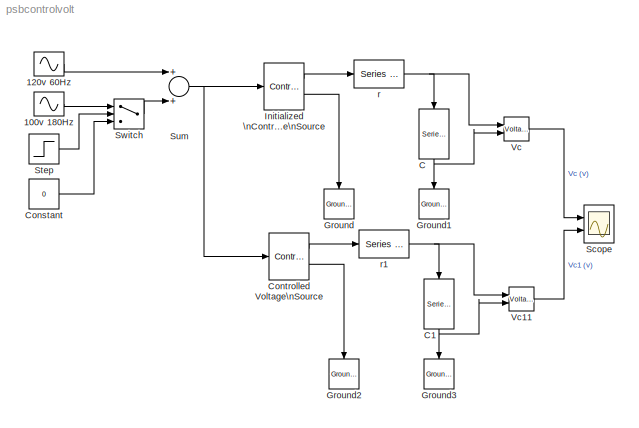
MODEL psbcontrolvolt
KIND model
CONFIG InitFcn = powericon('psbinitsys',bdroot);
BLOCK [Sin] 100v 180Hz
  Amplitude = 100
  Frequency = 2*pi*180
  Ports = [0, 1]
  SampleTime = 0
  SineType = Time based
BLOCK [Sin] 120v 60Hz
  Amplitude = 120
  Frequency = 2*pi*60
  Ports = [0, 1]
  SampleTime = 0
  SineType = Time based
BLOCK [Reference] C  REF=powerlib2/Elements/Series RLC Branch
  PSBOutputType = 1
  Ports = [1, 1]
  SourceBlock = powerlib2/Elements/Series RLC Branch
  SourceType = Series RLC Branch
  Tag = PoWeRsYsTeMbLoCk
  a = 0
  b = 0
  c = 500e-6
  mesure = None
BLOCK [Reference] C1  REF=powerlib2/Elements/Series RLC Branch
  PSBOutputType = 1
  Ports = [1, 1]
  SourceBlock = powerlib2/Elements/Series RLC Branch
  SourceType = Series RLC Branch
  Tag = PoWeRsYsTeMbLoCk
  a = 0
  b = 0
  c = 500e-6
  mesure = None
BLOCK [Constant] Constant
  Value = 0
BLOCK [Reference] Controlled Voltage\nSource  REF=powerlib2/Electrical\nSources/Controlled Voltage Source
  PSBOutputType = 11
  Ports = [1, 2]
  SourceBlock = powerlib2/Electrical\nSources/Controlled Voltage Source
  SourceType = Controlled Voltage Source
  Tag = PoWeRsYsTeMbLoCk
  ifreq = 60
  initsrc = off
  iph = 0
  iv = 120
  mesure = None
  srctyp = AC
BLOCK [Reference] Ground  REF=powerlib2/Connectors/Ground (input)
  Ports = [1]
  SourceBlock = powerlib2/Connectors/Ground (input)
  SourceType = Ground
  Tag = PoWeRsYsTeMbLoCk
BLOCK [Reference] Ground1  REF=powerlib2/Connectors/Ground (input)
  Ports = [1]
  SourceBlock = powerlib2/Connectors/Ground (input)
  SourceType = Ground
  Tag = PoWeRsYsTeMbLoCk
BLOCK [Reference] Ground2  REF=powerlib2/Connectors/Ground (input)
  Ports = [1]
  SourceBlock = powerlib2/Connectors/Ground (input)
  SourceType = Ground
  Tag = PoWeRsYsTeMbLoCk
BLOCK [Reference] Ground3  REF=powerlib2/Connectors/Ground (input)
  Ports = [1]
  SourceBlock = powerlib2/Connectors/Ground (input)
  SourceType = Ground
  Tag = PoWeRsYsTeMbLoCk
BLOCK [Reference] Initialized \nControlled Voltage\nSource  REF=powerlib2/Electrical\nSources/Controlled Voltage Source
  PSBOutputType = 11
  Ports = [1, 2]
  SourceBlock = powerlib2/Electrical\nSources/Controlled Voltage Source
  SourceType = Controlled Voltage Source
  Tag = PoWeRsYsTeMbLoCk
  ifreq = 60
  initsrc = on
  iph = 0
  iv = 120
  mesure = None
  srctyp = AC
BLOCK [Scope] Scope
  DataFormat = Array
  NumInputPorts = 2
  Ports = [2]
  TickLabels = on
  TimeRange = 0.1
  YMax = 100~100
  YMin = -100~-100
  ZoomMode = xonly
BLOCK [Step] Step
  SampleTime = 0
  Time = 2/60
BLOCK [Sum] Sum
  Ports = [2, 1]
BLOCK [Switch] Switch
  Threshold = 0.5
BLOCK [Reference] Vc  REF=powerlib2/Measurements/Voltage Measurement
  OutputType = Magnitude
  PSBOutputType = 0
  PSBequivalent = 0
  PhasorSimulation = off
  Ports = [2, 1]
  SourceBlock = powerlib2/Measurements/Voltage Measurement
  SourceType = Voltage Measurement
  Tag = PoWeRsYsTeMmEaSuReMeNt
BLOCK [Reference] Vc11  REF=powerlib2/Measurements/Voltage Measurement
  OutputType = Magnitude
  PSBOutputType = 0
  PSBequivalent = 0
  PhasorSimulation = off
  Ports = [2, 1]
  SourceBlock = powerlib2/Measurements/Voltage Measurement
  SourceType = Voltage Measurement
  Tag = PoWeRsYsTeMmEaSuReMeNt
BLOCK [Reference] r  REF=powerlib2/Elements/Series RLC Branch
  PSBOutputType = 1
  Ports = [1, 1]
  SourceBlock = powerlib2/Elements/Series RLC Branch
  SourceType = Series RLC Branch
  Tag = PoWeRsYsTeMbLoCk
  a = 10
  b = 0
  c = inf
  mesure = None
BLOCK [Reference] r1  REF=powerlib2/Elements/Series RLC Branch
  PSBOutputType = 1
  Ports = [1, 1]
  SourceBlock = powerlib2/Elements/Series RLC Branch
  SourceType = Series RLC Branch
  Tag = PoWeRsYsTeMbLoCk
  a = 10
  b = 0
  c = inf
  mesure = None
LINE 100v 180Hz:1 -> Switch:1
LINE 120v 60Hz:1 -> Sum:1
NET C1:1 -> Ground3:1, Vc11:2
NET C:1 -> Ground1:1, Vc:2
LINE Constant:1 -> Switch:3
LINE Controlled Voltage\nSource:1 -> r1:1
LINE Controlled Voltage\nSource:2 -> Ground2:1
LINE Initialized \nControlled Voltage\nSource:1 -> r:1
LINE Initialized \nControlled Voltage\nSource:2 -> Ground:1
LINE Step:1 -> Switch:2
NET Sum:1 -> Controlled Voltage\nSource:1, Initialized \nControlled Voltage\nSource:1
LINE Switch:1 -> Sum:2
LINE Vc11:1 -> Scope:2
LINE Vc:1 -> Scope:1
NET r1:1 -> C1:1, Vc11:1
NET r:1 -> C:1, Vc:1
note: NET lines group one-source signal fan-out (src -> all destinations, sorted); 1:1 wires keep LINE
